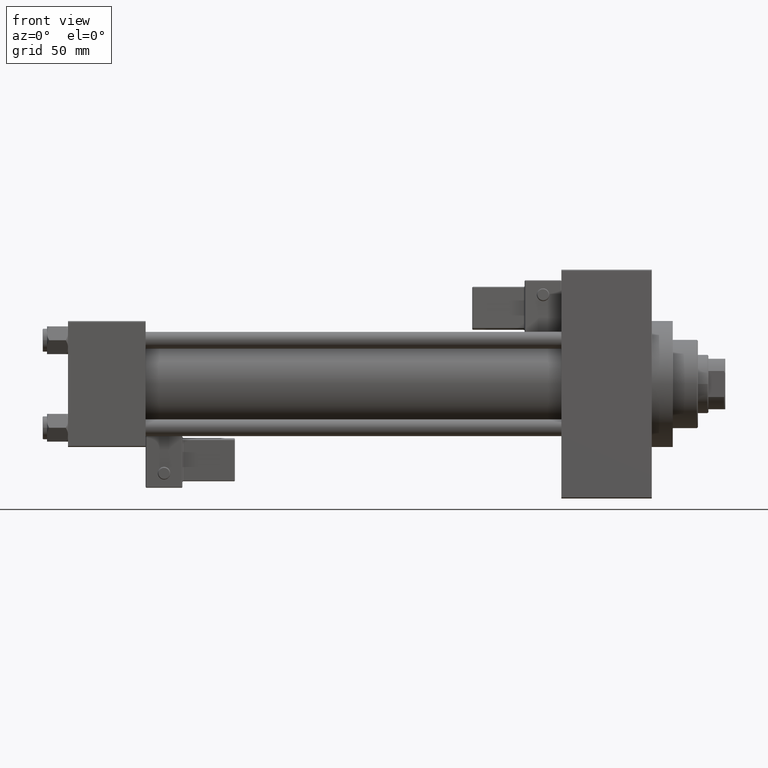
[diagram: clean part render]
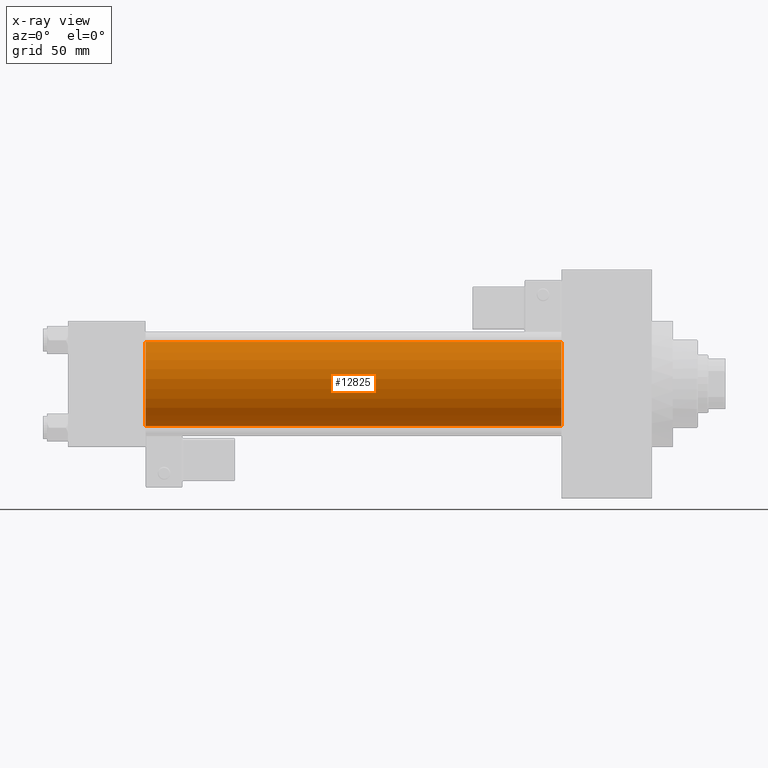
[diagram: x-ray — body ghosted, one internal face saturated and labeled with its STEP entity id]
A machine part, front view, then the same camera in x-ray: the body is ghosted and one INTERNAL B-rep face — a face not visible from any outside direction — is saturated and labeled: STEP entity #12825.
In plain terms, the highlighted cylindrical surface (partial cylindrical patch) has radius 20 mm, axis along (-1, -0, -0).
Its self-contained STEP definition (entity closure, byte-faithful):
#911 = EDGE_CURVE ( 'NONE', #35469, #2005, #35245, .T. ) ;
#1400 = AXIS2_PLACEMENT_3D ( 'NONE', #6829, #22139, #41019 ) ;
#2005 = VERTEX_POINT ( 'NONE', #33987 ) ;
#3169 = CIRCLE ( 'NONE', #27264, 20.00000000000000000 ) ;
#4512 = CYLINDRICAL_SURFACE ( 'NONE', #33044, 20.00000000000000000 ) ;
#5593 = ORIENTED_EDGE ( 'NONE', *, *, #40992, .F. ) ;
#6829 = CARTESIAN_POINT ( 'NONE',  ( 37.00000000000000000, -2.602085213965210642E-15, 0.000000000000000000 ) ) ;
#9252 = EDGE_CURVE ( 'NONE', #39851, #35469, #3169, .T. ) ;
#9605 = DIRECTION ( 'NONE',  ( 0.000000000000000000, 0.000000000000000000, -1.000000000000000000 ) ) ;
#10259 = CARTESIAN_POINT ( 'NONE',  ( 235.0000000000000284, -1.527916156705042519E-16, -20.00000000000000000 ) ) ;
#10685 = DIRECTION ( 'NONE',  ( -1.000000000000000000, -0.000000000000000000, -0.000000000000000000 ) ) ;
#11323 = FACE_OUTER_BOUND ( 'NONE', #29748, .T. ) ;
#11731 = VECTOR ( 'NONE', #15631, 1000.000000000000000 ) ;
#12825 = ADVANCED_FACE ( 'NONE', ( #11323 ), #4512, .F. ) ;
#14704 = LINE ( 'NONE', #29805, #47084 ) ;
#14842 = DIRECTION ( 'NONE',  ( -1.000000000000000000, -0.000000000000000000, -0.000000000000000000 ) ) ;
#14882 = ORIENTED_EDGE ( 'NONE', *, *, #32996, .F. ) ;
#15493 = ORIENTED_EDGE ( 'NONE', *, *, #911, .T. ) ;
#15631 = DIRECTION ( 'NONE',  ( -1.000000000000000000, -0.000000000000000000, -0.000000000000000000 ) ) ;
#20067 = VERTEX_POINT ( 'NONE', #25536 ) ;
#22137 = CARTESIAN_POINT ( 'NONE',  ( 235.0000000000000284, -2.602085213965210642E-15, 0.000000000000000000 ) ) ;
#22139 = DIRECTION ( 'NONE',  ( 1.000000000000000000, 0.000000000000000000, 0.000000000000000000 ) ) ;
#25536 = CARTESIAN_POINT ( 'NONE',  ( 37.00000000000000000, -2.602085213965210642E-15, 20.00000000000000000 ) ) ;
#27264 = AXIS2_PLACEMENT_3D ( 'NONE', #22137, #37500, #9605 ) ;
#29748 = EDGE_LOOP ( 'NONE', ( #32252, #15493, #14882, #5593 ) ) ;
#29805 = CARTESIAN_POINT ( 'NONE',  ( 235.0000000000000284, -2.602085213965210642E-15, 20.00000000000000000 ) ) ;
#30194 = DIRECTION ( 'NONE',  ( 0.000000000000000000, 0.000000000000000000, 1.000000000000000000 ) ) ;
#30310 = CIRCLE ( 'NONE', #1400, 20.00000000000000000 ) ;
#32252 = ORIENTED_EDGE ( 'NONE', *, *, #9252, .T. ) ;
#32996 = EDGE_CURVE ( 'NONE', #20067, #2005, #30310, .T. ) ;
#33044 = AXIS2_PLACEMENT_3D ( 'NONE', #33963, #14842, #30194 ) ;
#33963 = CARTESIAN_POINT ( 'NONE',  ( 235.0000000000000284, -2.602085213965210642E-15, 0.000000000000000000 ) ) ;
#33987 = CARTESIAN_POINT ( 'NONE',  ( 37.00000000000000000, -1.527916156705042519E-16, -20.00000000000000000 ) ) ;
#35245 = LINE ( 'NONE', #42276, #11731 ) ;
#35469 = VERTEX_POINT ( 'NONE', #10259 ) ;
#37500 = DIRECTION ( 'NONE',  ( 1.000000000000000000, 0.000000000000000000, 0.000000000000000000 ) ) ;
#39851 = VERTEX_POINT ( 'NONE', #41391 ) ;
#40992 = EDGE_CURVE ( 'NONE', #39851, #20067, #14704, .T. ) ;
#41019 = DIRECTION ( 'NONE',  ( 0.000000000000000000, 0.000000000000000000, -1.000000000000000000 ) ) ;
#41391 = CARTESIAN_POINT ( 'NONE',  ( 235.0000000000000284, -2.602085213965210642E-15, 20.00000000000000000 ) ) ;
#42276 = CARTESIAN_POINT ( 'NONE',  ( 235.0000000000000284, -1.527916156705042519E-16, -20.00000000000000000 ) ) ;
#47084 = VECTOR ( 'NONE', #10685, 1000.000000000000000 ) ;